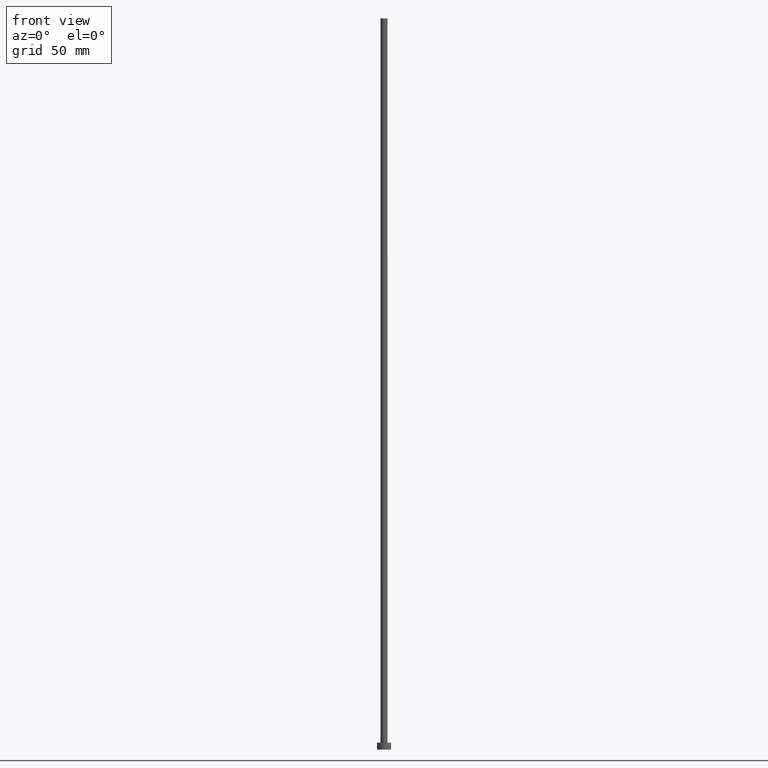
[diagram: clean part render]
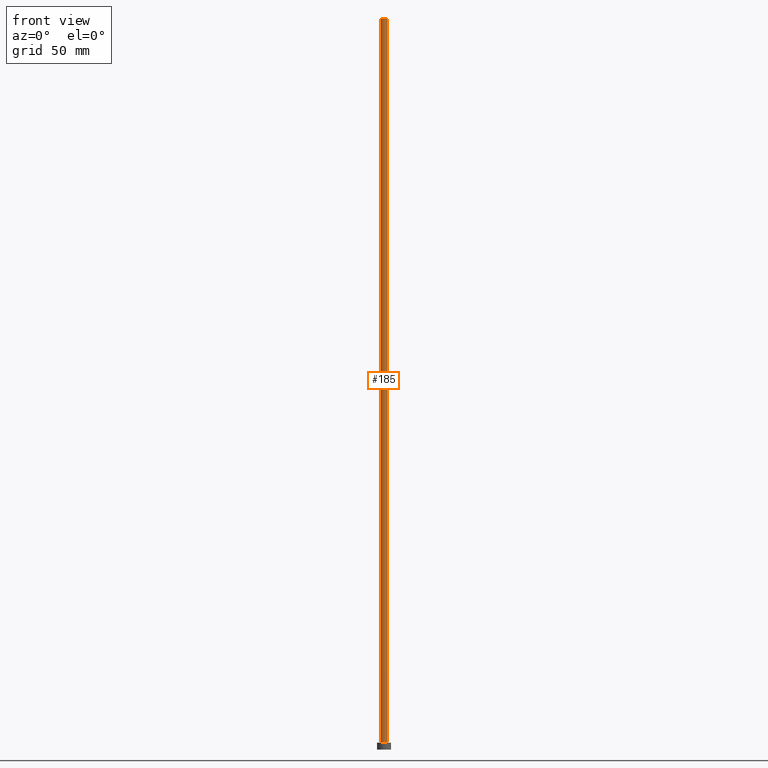
[diagram: same view with one face highlighted and labeled with its STEP entity id]
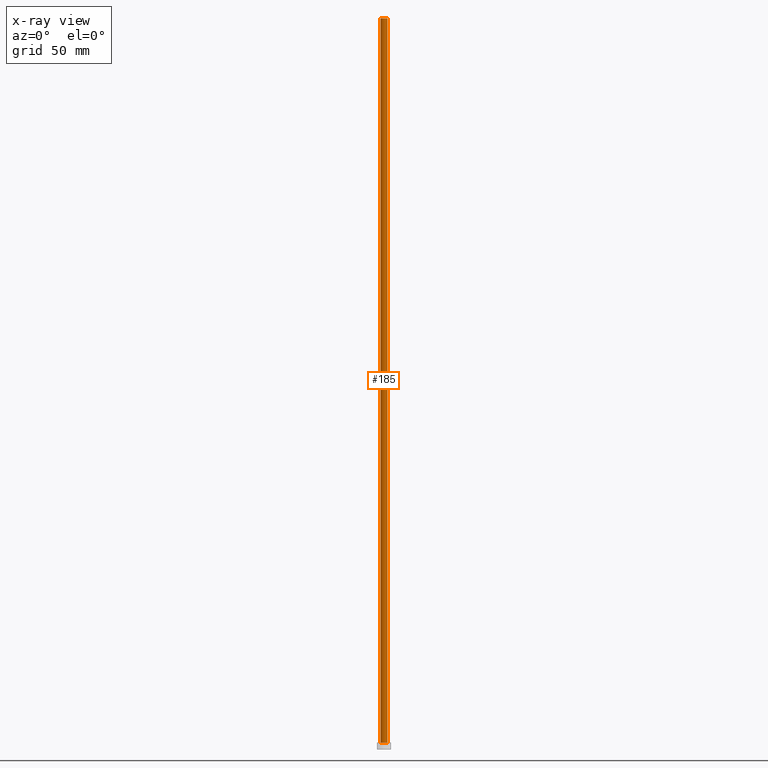
[diagram: x-ray of the same camera — body ghosted, the highlighted face saturated]
A machine part, front view. The second image highlights one B-rep face of the part: STEP entity #185.
The next image is the same camera in x-ray: the body ghosted, the highlighted face saturated — about 0% of this face is hidden behind the body in this view.
In plain terms, the highlighted cylindrical surface (edge-blend (fillet) strip) has radius 1.5 mm, axis along (-0, -0, -1).
Its self-contained STEP definition (entity closure, byte-faithful):
#2 = DIRECTION ( 'NONE',  ( -0.000000000000000000, -0.000000000000000000, -1.000000000000000000 ) ) ;
#4 = EDGE_LOOP ( 'NONE', ( #127, #204, #118, #193 ) ) ;
#10 = CARTESIAN_POINT ( 'NONE',  ( 0.000000000000000000, 0.000000000000000000, 3.000000000000000000 ) ) ;
#12 = LINE ( 'NONE', #212, #20 ) ;
#18 = CARTESIAN_POINT ( 'NONE',  ( -1.500000000000000222, 0.000000000000000000, 3.000000000000000000 ) ) ;
#20 = VECTOR ( 'NONE', #57, 1000.000000000000000 ) ;
#25 = LINE ( 'NONE', #166, #42 ) ;
#35 = CARTESIAN_POINT ( 'NONE',  ( 0.000000000000000000, 0.000000000000000000, 315.0000000000000000 ) ) ;
#37 = DIRECTION ( 'NONE',  ( -1.000000000000000000, 0.000000000000000000, 0.000000000000000000 ) ) ;
#42 = VECTOR ( 'NONE', #109, 1000.000000000000000 ) ;
#45 = DIRECTION ( 'NONE',  ( 1.000000000000000000, 0.000000000000000000, 0.000000000000000000 ) ) ;
#47 = EDGE_CURVE ( 'NONE', #182, #195, #25, .T. ) ;
#54 = FACE_OUTER_BOUND ( 'NONE', #4, .T. ) ;
#57 = DIRECTION ( 'NONE',  ( -0.000000000000000000, -0.000000000000000000, -1.000000000000000000 ) ) ;
#59 = AXIS2_PLACEMENT_3D ( 'NONE', #35, #214, #81 ) ;
#60 = CARTESIAN_POINT ( 'NONE',  ( 0.000000000000000000, 0.000000000000000000, 315.0000000000000000 ) ) ;
#77 = EDGE_CURVE ( 'NONE', #131, #195, #133, .T. ) ;
#81 = DIRECTION ( 'NONE',  ( 1.000000000000000000, 0.000000000000000000, 0.000000000000000000 ) ) ;
#100 = CYLINDRICAL_SURFACE ( 'NONE', #142, 1.500000000000000222 ) ;
#102 = DIRECTION ( 'NONE',  ( 0.000000000000000000, 0.000000000000000000, 1.000000000000000000 ) ) ;
#109 = DIRECTION ( 'NONE',  ( -0.000000000000000000, -0.000000000000000000, -1.000000000000000000 ) ) ;
#114 = AXIS2_PLACEMENT_3D ( 'NONE', #10, #102, #45 ) ;
#117 = EDGE_CURVE ( 'NONE', #128, #182, #218, .T. ) ;
#118 = ORIENTED_EDGE ( 'NONE', *, *, #216, .T. ) ;
#127 = ORIENTED_EDGE ( 'NONE', *, *, #47, .F. ) ;
#128 = VERTEX_POINT ( 'NONE', #156 ) ;
#131 = VERTEX_POINT ( 'NONE', #18 ) ;
#133 = CIRCLE ( 'NONE', #114, 1.500000000000000222 ) ;
#134 = CARTESIAN_POINT ( 'NONE',  ( 1.500000000000000222, 1.836970198721030181E-16, 315.0000000000000000 ) ) ;
#142 = AXIS2_PLACEMENT_3D ( 'NONE', #60, #2, #37 ) ;
#154 = CARTESIAN_POINT ( 'NONE',  ( 1.500000000000000222, 1.836970198721030181E-16, 3.000000000000000000 ) ) ;
#156 = CARTESIAN_POINT ( 'NONE',  ( -1.500000000000000222, 0.000000000000000000, 315.0000000000000000 ) ) ;
#166 = CARTESIAN_POINT ( 'NONE',  ( 1.500000000000000222, 1.836970198721030181E-16, 315.0000000000000000 ) ) ;
#182 = VERTEX_POINT ( 'NONE', #134 ) ;
#185 = ADVANCED_FACE ( 'NONE', ( #54 ), #100, .T. ) ;
#193 = ORIENTED_EDGE ( 'NONE', *, *, #77, .T. ) ;
#195 = VERTEX_POINT ( 'NONE', #154 ) ;
#204 = ORIENTED_EDGE ( 'NONE', *, *, #117, .F. ) ;
#212 = CARTESIAN_POINT ( 'NONE',  ( -1.500000000000000222, 0.000000000000000000, 315.0000000000000000 ) ) ;
#214 = DIRECTION ( 'NONE',  ( 0.000000000000000000, 0.000000000000000000, 1.000000000000000000 ) ) ;
#216 = EDGE_CURVE ( 'NONE', #128, #131, #12, .T. ) ;
#218 = CIRCLE ( 'NONE', #59, 1.500000000000000222 ) ;